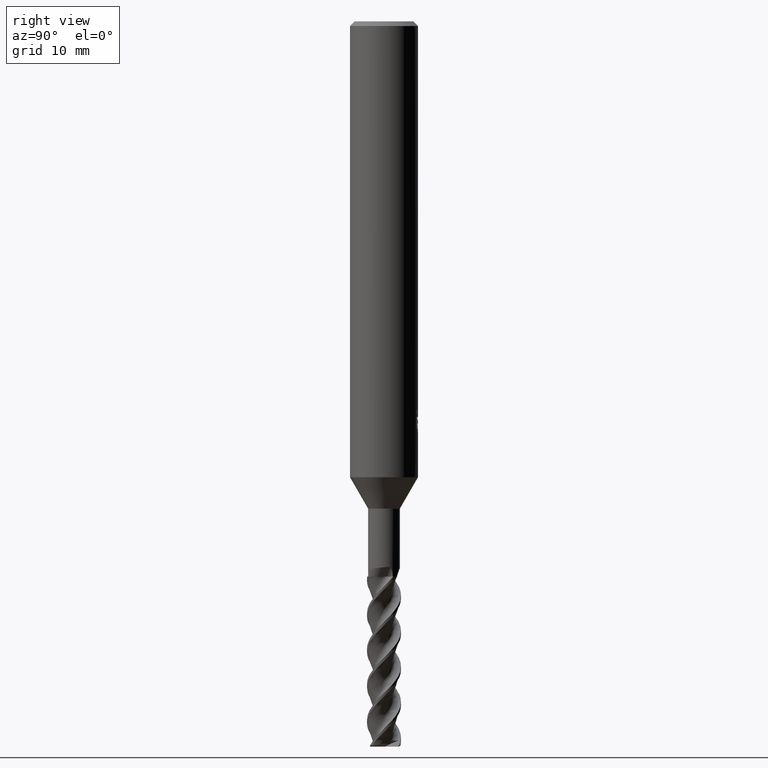
[diagram: clean part render]
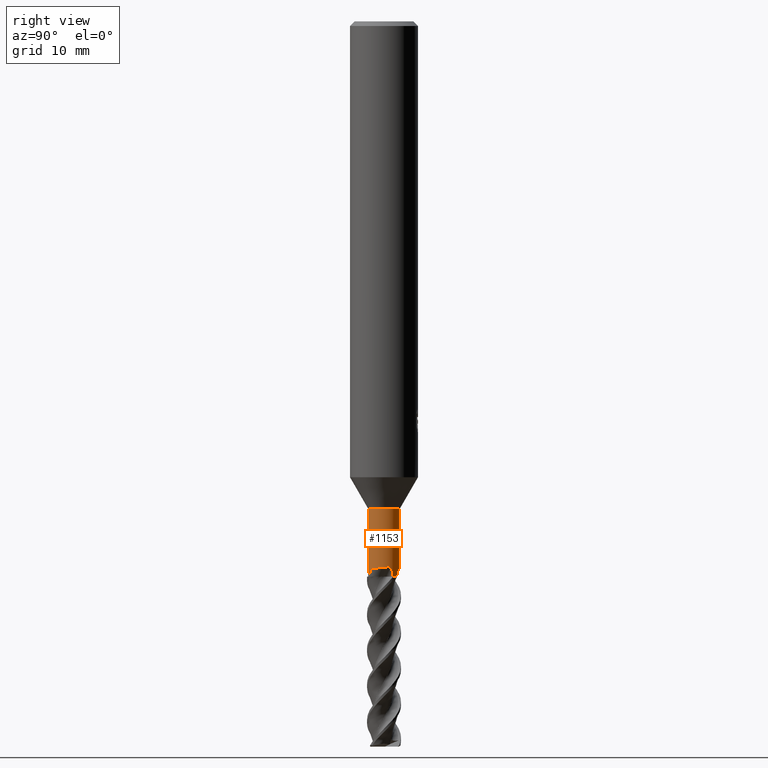
[diagram: same view with one face highlighted and labeled with its STEP entity id]
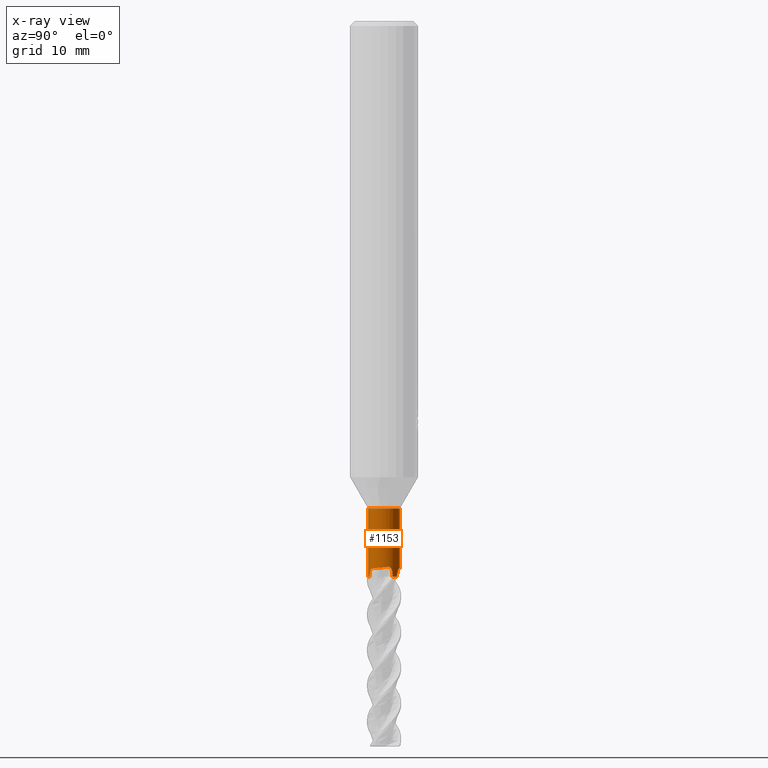
[diagram: x-ray of the same camera — body ghosted, the highlighted face saturated]
A machine part, right view. The second image highlights one B-rep face of the part: STEP entity #1153.
The next image is the same camera in x-ray: the body ghosted, the highlighted face saturated — about 0% of this face is hidden behind the body in this view.
In plain terms, the highlighted cylindrical surface (edge-blend (fillet) strip) has radius 1.4 mm, axis along (-0, -0, 1).
Its self-contained STEP definition (entity closure, byte-faithful):
#529=VERTEX_POINT('',#1464);
#537=EDGE_CURVE('',#883,#733,#1472,.T.);
#641=EDGE_CURVE('',#1393,#711,#1587,.T.);
#685=VERTEX_POINT('',#1638);
#711=VERTEX_POINT('',#1667);
#733=VERTEX_POINT('',#1693);
#739=EDGE_CURVE('',#529,#1203,#1699,.T.);
#781=EDGE_CURVE('',#899,#1353,#1746,.T.);
#821=VERTEX_POINT('',#1789);
#839=EDGE_CURVE('',#883,#1353,#1807,.T.);
#857=EDGE_CURVE('',#821,#1203,#1826,.T.);
#883=VERTEX_POINT('',#1853);
#899=VERTEX_POINT('',#1869);
#951=EDGE_CURVE('',#1263,#685,#1923,.T.);
#1049=EDGE_CURVE('',#529,#711,#2034,.T.);
#1087=EDGE_CURVE('',#821,#685,#2077,.T.);
#1099=EDGE_CURVE('',#1393,#899,#2090,.T.);
#1153=ADVANCED_FACE('',(#2148),#2149,.T.);
#1203=VERTEX_POINT('',#2201);
#1263=VERTEX_POINT('',#2267);
#1305=EDGE_CURVE('',#733,#1263,#2312,.T.);
#1353=VERTEX_POINT('',#2362);
#1393=VERTEX_POINT('',#2405);
#1464=CARTESIAN_POINT('',(0.0,1.39995,-43.0));
#1472=B_SPLINE_CURVE_WITH_KNOTS('',3,(#3438,#3439,#3440,#3441,#3442,#3443,#3444,#3445,#3446,#3447,#3448,#3449,#3450,#3451,#3452,#3453,#3454,#3455,#3456,#3457,#3458,#3459,#3460,#3461,#3462,#3463,#3464,#3465,#3466,#3467,#3468,#3469),.UNSPECIFIED.,.F.,.F.,(4,2,2,2,2,2,2,2,2,2,2,2,2,2,2,4),(0.0,0.604544265166936,0.687820246130575,0.735294404394893,0.750041314345244,0.759016662789457,0.767126784258181,0.777516246264003,0.798971651034605,0.901886292972996,1.00879142661753,1.18248374227592,1.56498173510331,2.1043602258168,2.38841720084379,2.66976606541857),.UNSPECIFIED.);
#1587=LINE('',#4459,#4460);
#1638=CARTESIAN_POINT('',(1.17465818713058,0.761602354189569,-49.0));
#1667=CARTESIAN_POINT('',(1.71438766503364E-016,-1.39995,-43.0));
#1693=CARTESIAN_POINT('',(1.37989509762532,0.236113366943968,-48.1496344412646));
#1699=LINE('',#5554,#5555);
#1746=B_SPLINE_CURVE_WITH_KNOTS('',3,(#5708,#5709,#5710,#5711),.UNSPECIFIED.,.F.,.F.,(4,4),(0.0,0.19440830020518),.UNSPECIFIED.);
#1789=CARTESIAN_POINT('',(0.86353089661016,1.10189581771584,-48.9999999999999));
#1807=CIRCLE('',#5883,1.39995);
#1826=B_SPLINE_CURVE_WITH_KNOTS('',3,(#6052,#6053,#6054,#6055,#6056,#6057,#6058,#6059,#6060,#6061,#6062,#6063,#6064,#6065,#6066,#6067,#6068,#6069,#6070,#6071,#6072,#6073,#6074,#6075,#6076,#6077,#6078,#6079,#6080,#6081,#6082,#6083),.UNSPECIFIED.,.F.,.F.,(4,2,2,2,2,2,2,2,2,2,2,2,2,2,2,4),(0.0,0.604544265162515,0.687820246147526,0.73529440441264,0.750041314350209,0.759016662765629,0.76712678420003,0.77751624619098,0.798971650959106,0.901886292872863,1.00879142649348,1.18248374211152,1.56498173484667,2.10436022541866,2.38841720036505,2.66976606485993),.UNSPECIFIED.);
#1853=CARTESIAN_POINT('',(0.522504322160612,-1.29878760227509,-49.0));
#1869=CARTESIAN_POINT('',(0.0686210786088774,-1.39826719552114,-48.8056240611088));
#1923=B_SPLINE_CURVE_WITH_KNOTS('',3,(#7008,#7009,#7010,#7011),.UNSPECIFIED.,.F.,.F.,(4,4),(0.0,0.194408300203801),.UNSPECIFIED.);
#2034=CIRCLE('',#8262,1.39995);
#2077=CIRCLE('',#8613,1.39995);
#2090=B_SPLINE_CURVE_WITH_KNOTS('',3,(#8629,#8630,#8631,#8632,#8633,#8634,#8635,#8636,#8637,#8638,#8639,#8640,#8641,#8642),.UNSPECIFIED.,.F.,.F.,(4,2,2,2,2,2,4),(0.0,0.135375120406314,0.251991808754869,0.380470986667127,0.563097470365235,0.779782840041991,1.00838683022565),.UNSPECIFIED.);
#2148=FACE_OUTER_BOUND('',#9335,.T.);
#2149=CYLINDRICAL_SURFACE('',#9336,1.39995);
#2201=CARTESIAN_POINT('',(1.68085307463802E-013,1.39995,-48.2403633276988));
#2267=CARTESIAN_POINT('',(1.17662437329529,0.758561195070956,-48.8056240611087));
#2312=B_SPLINE_CURVE_WITH_KNOTS('',3,(#12152,#12153,#12154,#12155,#12156,#12157,#12158,#12159,#12160,#12161,#12162,#12163,#12164,#12165),.UNSPECIFIED.,.F.,.F.,(4,2,2,2,2,2,4),(0.0,0.135375120406185,0.251991808754586,0.380470986666663,0.563097470364535,0.779782840041039,1.00838683022432),.UNSPECIFIED.);
#2362=CARTESIAN_POINT('',(0.0722378927449061,-1.39808500791324,-49.0));
#2405=CARTESIAN_POINT('',(-3.2892151831193E-011,-1.39995,-48.4532534506125));
#3438=CARTESIAN_POINT('',(0.522504322160572,-1.29878760227511,-49.0000000000001));
#3439=CARTESIAN_POINT('',(0.586565139639445,-1.27301583331518,-48.8106848550863));
#3440=CARTESIAN_POINT('',(0.650009873671794,-1.24130586667599,-48.6201460266033));
#3441=CARTESIAN_POINT('',(0.70821159013362,-1.20762685779874,-48.4877266803664));
#3442=CARTESIAN_POINT('',(0.715725398328759,-1.20319642155642,-48.4715248259633));
#3443=CARTESIAN_POINT('',(0.728078758927334,-1.1957377539511,-48.4471739048633));
#3444=CARTESIAN_POINT('',(0.732757444645571,-1.19287860284123,-48.4384019099973));
#3445=CARTESIAN_POINT('',(0.739140188413831,-1.18892176037856,-48.4272089972401));
#3446=CARTESIAN_POINT('',(0.740674520818283,-1.18796659302616,-48.4245730488304));
#3447=CARTESIAN_POINT('',(0.743178146263248,-1.18640106774257,-48.4203670670369));
#3448=CARTESIAN_POINT('',(0.744133890554831,-1.18580186080081,-48.4187830665761));
#3449=CARTESIAN_POINT('',(0.745969718796876,-1.18464772850839,-48.4157835404668));
#3450=CARTESIAN_POINT('',(0.746848368585417,-1.18409400606865,-48.4143662423284));
#3451=CARTESIAN_POINT('',(0.748869416045564,-1.1828171467837,-48.4111497019577));
#3452=CARTESIAN_POINT('',(0.750016739403427,-1.18209000619445,-48.4093547423715));
#3453=CARTESIAN_POINT('',(0.753572247957012,-1.17982919454164,-48.4038921850743));
#3454=CARTESIAN_POINT('',(0.756022382653463,-1.17826103703613,-48.4002654455791));
#3455=CARTESIAN_POINT('',(0.770566867325601,-1.16888483310395,-48.3796119961736));
#3456=CARTESIAN_POINT('',(0.783629959476426,-1.1602208759197,-48.364469566391));
#3457=CARTESIAN_POINT('',(0.81397635542555,-1.13914742131257,-48.3376904870826));
#3458=CARTESIAN_POINT('',(0.83031278152647,-1.12734257868254,-48.3271729861891));
#3459=CARTESIAN_POINT('',(0.875151998291163,-1.09324510569387,-48.3045879520108));
#3460=CARTESIAN_POINT('',(0.905179779899571,-1.06857873786451,-48.2954527430978));
#3461=CARTESIAN_POINT('',(0.992958555010191,-0.990174099328709,-48.2732777160895));
#3462=CARTESIAN_POINT('',(1.06887376462667,-0.912964456285513,-48.2623397077241));
#3463=CARTESIAN_POINT('',(1.24585909577301,-0.663159293330807,-48.2356073122211));
#3464=CARTESIAN_POINT('',(1.32053659756009,-0.498326427901283,-48.2225908176046));
#3465=CARTESIAN_POINT('',(1.38392564928428,-0.231439550570973,-48.198861105988));
#3466=CARTESIAN_POINT('',(1.39638721363064,-0.13745372230833,-48.1901947678382));
#3467=CARTESIAN_POINT('',(1.40216431742146,0.050562124504773,-48.1712408310263));
#3468=CARTESIAN_POINT('',(1.39564462824195,0.144069869495779,-48.1610279107861));
#3469=CARTESIAN_POINT('',(1.37989509762531,0.236113366943968,-48.1496344412646));
#4459=CARTESIAN_POINT('',(1.71427150420456E-016,-1.39995,-46.0));
#4460=VECTOR('',#13115,1.0);
#5554=CARTESIAN_POINT('',(-1.71450382586271E-016,1.39995,-46.0));
#5555=VECTOR('',#13261,1.0);
#5708=CARTESIAN_POINT('',(0.0686210786088789,-1.39826719552115,-48.8056240611087));
#5709=CARTESIAN_POINT('',(0.0698772740916353,-1.39820554672523,-48.870414621755));
#5710=CARTESIAN_POINT('',(0.0710832175223823,-1.39814466902427,-48.9352075312895));
#5711=CARTESIAN_POINT('',(0.0722378927449101,-1.39808500791324,-49.0000000000002));
#5883=AXIS2_PLACEMENT_3D('',#13361,#13362,#13363);
#6052=CARTESIAN_POINT('',(0.863530896610161,1.10189581771584,-48.9999999999999));
#6053=CARTESIAN_POINT('',(0.809181481251342,1.14448822855947,-48.8106848550874));
#6054=CARTESIAN_POINT('',(0.749997477574093,1.18357799664718,-48.6201460266104));
#6055=CARTESIAN_POINT('',(0.691729742081079,1.21714265720864,-48.4877266803705));
#6056=CARTESIAN_POINT('',(0.684135967646337,1.22143458786448,-48.4715248259641));
#6057=CARTESIAN_POINT('',(0.671499891720854,1.22840357816316,-48.4471739048614));
#6058=CARTESIAN_POINT('',(0.666684451367726,1.23102586329633,-48.4384019099961));
#6059=CARTESIAN_POINT('',(0.660066353394058,1.23457506031312,-48.4272089972423));
#6060=CARTESIAN_POINT('',(0.658471987999119,1.23542624747739,-48.4245730488313));
#6061=CARTESIAN_POINT('',(0.655864390612115,1.23681168807179,-48.42036706704));
#6062=CARTESIAN_POINT('',(0.654867590031665,1.23733978343746,-48.4187830665775));
#6063=CARTESIAN_POINT('',(0.652950168025241,1.23835259118628,-48.415783540467));
#6064=CARTESIAN_POINT('',(0.652031305431449,1.23883666300436,-48.4143662423284));
#6065=CARTESIAN_POINT('',(0.649914989120087,1.23994851180645,-48.4111497019524));
#6066=CARTESIAN_POINT('',(0.648711605220403,1.2405785526852,-48.409354742369));
#6067=CARTESIAN_POINT('',(0.644975930620693,1.24252730758874,-48.4038921850741));
#6068=CARTESIAN_POINT('',(0.642392799035208,1.24386510772598,-48.4002654455785));
#6069=CARTESIAN_POINT('',(0.627000525902344,1.25177289897114,-48.3796119961725));
#6070=CARTESIAN_POINT('',(0.61296577280814,1.25875389003355,-48.3644695663902));
#6071=CARTESIAN_POINT('',(0.579542427798295,1.27449791253521,-48.3376904870822));
#6072=CARTESIAN_POINT('',(0.56115092114251,1.28274325123064,-48.3271729861886));
#6073=CARTESIAN_POINT('',(0.509202034946113,1.30452641554067,-48.3045879520102));
#6074=CARTESIAN_POINT('',(0.472826442982231,1.31819805331825,-48.2954527430972));
#6075=CARTESIAN_POINT('',(0.361036646677479,1.35501438320983,-48.2732777160886));
#6076=CARTESIAN_POINT('',(0.256213529574198,1.3821540617499,-48.2623397077232));
#6077=CARTESIAN_POINT('',(-0.0486167531175926,1.41052527314039,-48.2356073122201));
#6078=CARTESIAN_POINT('',(-0.228704952851751,1.39278145406289,-48.2225908176034));
#6079=CARTESIAN_POINT('',(-0.491530294416187,1.31423454451105,-48.198861105987));
#6080=CARTESIAN_POINT('',(-0.579155191458486,1.27803366167478,-48.1901947678373));
#6081=CARTESIAN_POINT('',(-0.744870243004289,1.18902885691255,-48.1712408310257));
#6082=CARTESIAN_POINT('',(-0.822590481025615,1.13662876796377,-48.1610279107857));
#6083=CARTESIAN_POINT('',(-0.894427722759175,1.07696752562918,-48.1496344412644));
#7008=CARTESIAN_POINT('',(1.17662437329529,0.758561195070949,-48.8056240611087));
#7009=CARTESIAN_POINT('',(1.17594288613054,0.75961826787317,-48.8704146217544));
#7010=CARTESIAN_POINT('',(1.17528719277961,0.760632206669251,-48.9352075312892));
#7011=CARTESIAN_POINT('',(1.17465818713058,0.761602354189571,-49.0000000000001));
#8262=AXIS2_PLACEMENT_3D('',#13608,#13609,#13610);
#8613=AXIS2_PLACEMENT_3D('',#13648,#13649,#13650);
#8629=CARTESIAN_POINT('',(-0.485467374884306,-1.31308089256639,-48.1496344415346));
#8630=CARTESIAN_POINT('',(-0.445605038421399,-1.32781864707105,-48.1344666476573));
#8631=CARTESIAN_POINT('',(-0.403496567661147,-1.3412974507923,-48.126316544348));
#8632=CARTESIAN_POINT('',(-0.322482033438561,-1.36285380674791,-48.1296178720663));
#8633=CARTESIAN_POINT('',(-0.286010329672823,-1.37088284148265,-48.1384410575344));
#8634=CARTESIAN_POINT('',(-0.212567469406295,-1.38427110035699,-48.1713676358358));
#8635=CARTESIAN_POINT('',(-0.177718069880044,-1.38897281772415,-48.1961246322918));
#8636=CARTESIAN_POINT('',(-0.102749032330875,-1.39687541254164,-48.2672834806));
#8637=CARTESIAN_POINT('',(-0.0665254990884801,-1.39866720491526,-48.3184189836012));
#8638=CARTESIAN_POINT('',(-0.00334427422273138,-1.40036607223326,-48.4360471629354));
#8639=CARTESIAN_POINT('',(0.0219839178101674,-1.39988371208091,-48.5060227817226));
#8640=CARTESIAN_POINT('',(0.0574268594741868,-1.3988900978094,-48.651322594887));
#8641=CARTESIAN_POINT('',(0.0671286357692451,-1.39834043834454,-48.728648620083));
#8642=CARTESIAN_POINT('',(0.0686210785089954,-1.39826719552604,-48.8056240611091));
#9335=EDGE_LOOP('',(#13704,#13705,#13706,#13707,#13708,#13709,#13710,#13711,#13712,#13713,#13714));
#9336=AXIS2_PLACEMENT_3D('',#13715,#13716,#13717);
#12152=CARTESIAN_POINT('',(1.37989509762859,0.236113366924848,-48.1496344415345));
#12153=CARTESIAN_POINT('',(1.37272719919291,0.278004040208218,-48.1344666476573));
#12154=CARTESIAN_POINT('',(1.36334595024801,0.32121044746176,-48.1263165443479));
#12155=CARTESIAN_POINT('',(1.3415070350073,0.402149270152107,-48.1296178720662));
#12156=CARTESIAN_POINT('',(1.33022453117258,0.437749209499904,-48.1384410575343));
#12157=CARTESIAN_POINT('',(1.30509767333693,0.508046721654479,-48.1713676358357));
#12158=CARTESIAN_POINT('',(1.29174478025519,0.540578045634427,-48.1961246322917));
#12159=CARTESIAN_POINT('',(1.26110410934836,0.609454434058025,-48.2672834805999));
#12160=CARTESIAN_POINT('',(1.24454408044102,0.641720830247584,-48.3184189836012));
#12161=CARTESIAN_POINT('',(1.21442473026321,0.697286809682523,-48.4360471629353));
#12162=CARTESIAN_POINT('',(1.20134289810104,0.718980487338767,-48.5060227817225));
#12163=CARTESIAN_POINT('',(1.18276093206834,0.749178168068917,-48.6513225948869));
#12164=CARTESIAN_POINT('',(1.17743402486082,0.757305323069838,-48.728648620083));
#12165=CARTESIAN_POINT('',(1.17662437334948,0.758561194986906,-48.805624061109));
#13115=DIRECTION('',(-0.0,-0.0,1.0));
#13261=DIRECTION('',(0.0,0.0,-1.0));
#13361=CARTESIAN_POINT('',(0.0,0.0,-49.0));
#13362=DIRECTION('',(0.0,0.0,-1.0));
#13363=DIRECTION('',(0.0,1.0,0.0));
#13608=CARTESIAN_POINT('',(0.0,0.0,-43.0));
#13609=DIRECTION('',(0.0,0.0,-1.0));
#13610=DIRECTION('',(0.0,1.0,0.0));
#13648=CARTESIAN_POINT('',(0.0,0.0,-49.0));
#13649=DIRECTION('',(0.0,0.0,-1.0));
#13650=DIRECTION('',(0.0,1.0,0.0));
#13704=ORIENTED_EDGE('',*,*,#739,.F.);
#13705=ORIENTED_EDGE('',*,*,#1049,.T.);
#13706=ORIENTED_EDGE('',*,*,#641,.F.);
#13707=ORIENTED_EDGE('',*,*,#1099,.T.);
#13708=ORIENTED_EDGE('',*,*,#781,.T.);
#13709=ORIENTED_EDGE('',*,*,#839,.F.);
#13710=ORIENTED_EDGE('',*,*,#537,.T.);
#13711=ORIENTED_EDGE('',*,*,#1305,.T.);
#13712=ORIENTED_EDGE('',*,*,#951,.T.);
#13713=ORIENTED_EDGE('',*,*,#1087,.F.);
#13714=ORIENTED_EDGE('',*,*,#857,.T.);
#13715=CARTESIAN_POINT('',(0.0,0.0,-46.0));
#13716=DIRECTION('',(-0.0,-0.0,1.0));
#13717=DIRECTION('',(0.0,1.0,0.0));